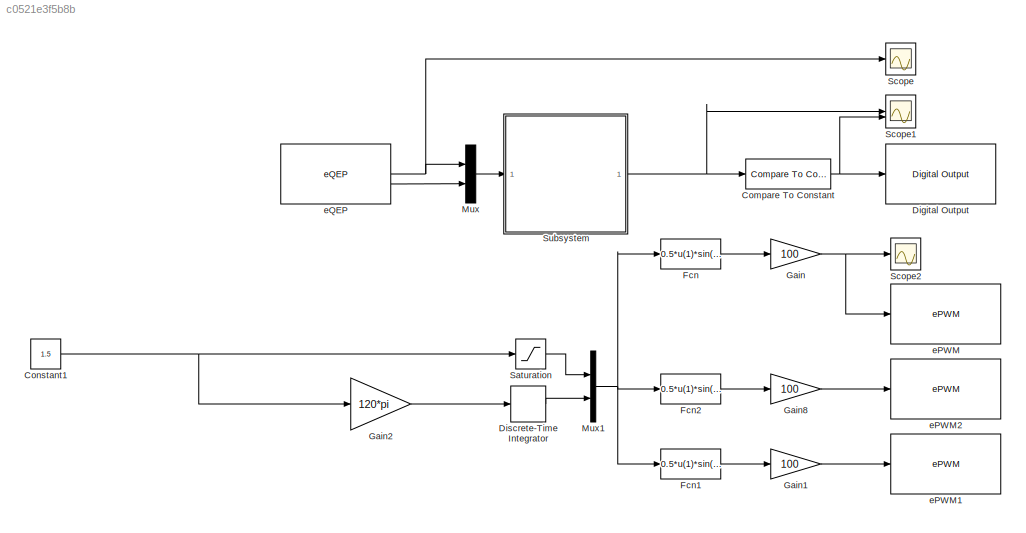
MODEL slx_c0521e3f5b8b
KIND model
CONFIG AbsTol = auto
CONFIG EnableMultiTasking = on
CONFIG FixedStep = auto
CONFIG MaxStep = auto
CONFIG MinStep = auto
CONFIG RelTol = 1e-3
CONFIG SampleTimeConstraint = Unconstrained
CONFIG SolverName = FixedStepAuto
CONFIG StartTime = 0.0
CONFIG StopTime = Inf
BLOCK [Reference] Compare To Constant  REF=simulink/Logic and Bit
Operations/Compare
To Constant
  SourceBlock = simulink/Logic and Bit\nOperations/Compare\nTo Constant
  SourceType = Compare To Constant
BLOCK [Constant] Constant1
  Value = 1.5
BLOCK [Reference] Digital Output  REF=c2837xDlib/Digital Output
  SourceBlock = c2837xDlib/Digital Output
  SourceType = F2837x GPIO Digital Output
  UserDataPersistent = on
BLOCK [DiscreteIntegrator] Discrete-Time Integrator
  ICPrevOutput = DiscIntNeverNeededParam
  ICPrevScaledInput = DiscIntNeverNeededParam
  InitialConditionSetting = Auto
  SampleTime = -1
BLOCK [Fcn] Fcn
  Expr = 0.5*u(1)*sin(u(2))+0.5
BLOCK [Fcn] Fcn1
  Expr = 0.5*u(1)*sin(u(2)+(2*pi/3))+0.5
BLOCK [Fcn] Fcn2
  Expr = 0.5*u(1)*sin(u(2)-(2*pi/3))+0.5
BLOCK [Gain] Gain
  Gain = 100
BLOCK [Gain] Gain1
  Gain = 100
BLOCK [Gain] Gain2
  Gain = 120*pi
BLOCK [Gain] Gain8
  Gain = 100
BLOCK [Mux] Mux
  DisplayOption = bar
  Inputs = 2
BLOCK [Mux] Mux1
  DisplayOption = bar
  Inputs = 2
BLOCK [Saturate] Saturation
  LowerLimit = 0
  UpperLimit = 0.9
BLOCK [Scope] Scope
  Floating = off
  NumInputPorts = 1
  ScopeSpecificationString = Simulink.scopes.TimeScopeBlockCfg('CurrentConfiguration', extmgr.ConfigurationSet(extmgr.Configuration('Core','General UI',true),extmgr.Configuration('Core','Source UI',true),extmgr.Configuration('Sources','WiredSimulink',true),extmgr.Configuration('Visuals','Time Domain',true,'SerializedDisplays',{struct('MinYLimReal','0.9','MaxYLimReal','1.1','YLabelReal','','MinYLimMag','0.9','MaxYLimMag','1.1'...<+1435ch>
BLOCK [Scope] Scope1
  Floating = off
  NumInputPorts = 2
  ScopeSpecificationString = Simulink.scopes.TimeScopeBlockCfg('CurrentConfiguration', extmgr.ConfigurationSet(extmgr.Configuration('Core','General UI',true),extmgr.Configuration('Core','Source UI',true),extmgr.Configuration('Sources','WiredSimulink',true,'DataLoggingVariableName','ScopeData1'),extmgr.Configuration('Visuals','Time Domain',true,'SerializedDisplays',{struct('MinYLimReal','0.00214','MaxYLimReal','0.00414','YLabe...<+2280ch>
BLOCK [Scope] Scope2
  Floating = off
  NumInputPorts = 1
  ScopeSpecificationString = Simulink.scopes.TimeScopeBlockCfg('CurrentConfiguration', extmgr.ConfigurationSet(extmgr.Configuration('Core','General UI',true),extmgr.Configuration('Core','Source UI',true),extmgr.Configuration('Sources','WiredSimulink',true,'DataLoggingVariableName','ScopeData2'),extmgr.Configuration('Visuals','Time Domain',true,'SerializedDisplays',{struct('MinYLimReal','-6.25','MaxYLimReal','106.25','YLabelRe...<+1542ch>
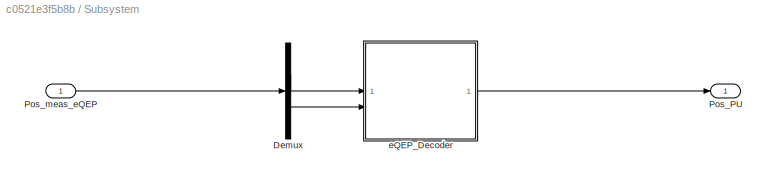
BLOCK [SubSystem] Subsystem
BLOCK [Demux] Subsystem/Demux
  Outputs = 2
BLOCK [Outport] Subsystem/Pos_PU
  InitialOutput = 0
  VectorParamsAs1DForOutWhenUnconnected = off
BLOCK [Inport] Subsystem/Pos_meas_eQEP
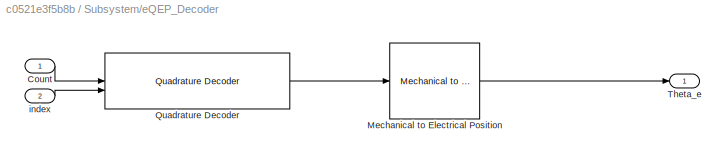
BLOCK [SubSystem] Subsystem/eQEP_Decoder
BLOCK [Inport] Subsystem/eQEP_Decoder/Count
BLOCK [Reference] Subsystem/eQEP_Decoder/Mechanical to Electrical Position  REF=mcbpositiondecoderlib/Mechanical to Electrical Position
  SourceBlock = mcbpositiondecoderlib/Mechanical to Electrical Position
  SourceType = Mechanical to Electrical Position
BLOCK [Reference] Subsystem/eQEP_Decoder/Quadrature Decoder  REF=mcbpositiondecoderlib/Quadrature Decoder
  SourceBlock = mcbpositiondecoderlib/Quadrature Decoder
  SourceType = Quadrature Decoder
BLOCK [Outport] Subsystem/eQEP_Decoder/Theta_e
  VectorParamsAs1DForOutWhenUnconnected = off
BLOCK [Inport] Subsystem/eQEP_Decoder/index
  Port = 2
BLOCK [Reference] ePWM  REF=c2802xlib/ePWM
  SourceBlock = c2802xlib/ePWM
  SourceType = ePWM Type 1-4
  UserDataPersistent = on
BLOCK [Reference] ePWM1  REF=c2802xlib/ePWM
  SourceBlock = c2802xlib/ePWM
  SourceType = ePWM Type 1-4
  UserDataPersistent = on
BLOCK [Reference] ePWM2  REF=c2802xlib/ePWM
  SourceBlock = c2802xlib/ePWM
  SourceType = ePWM Type 1-4
  UserDataPersistent = on
BLOCK [Reference] eQEP  REF=c280xlib/eQEP
  SourceBlock = c280xlib/eQEP
  SourceType = C28x eQEP
NET Compare To Constant:1 -> Digital Output:1, Scope1:2
NET Constant1:1 -> Gain2:1, Saturation:1
LINE Discrete-Time Integrator:1 -> Mux1:2
LINE Fcn1:1 -> Gain1:1
LINE Fcn2:1 -> Gain8:1
LINE Fcn:1 -> Gain:1
LINE Gain1:1 -> ePWM1:1
LINE Gain2:1 -> Discrete-Time Integrator:1
LINE Gain8:1 -> ePWM2:1
NET Gain:1 -> Scope2:1, ePWM:1
NET Mux1:1 -> Fcn1:1, Fcn2:1, Fcn:1
LINE Mux:1 -> Subsystem:1
LINE Saturation:1 -> Mux1:1
LINE Subsystem/Demux:1 -> Subsystem/eQEP_Decoder:1
LINE Subsystem/Demux:2 -> Subsystem/eQEP_Decoder:2
LINE Subsystem/Pos_meas_eQEP:1 -> Subsystem/Demux:1
LINE Subsystem/eQEP_Decoder/Count:1 -> Subsystem/eQEP_Decoder/Quadrature Decoder:1
LINE Subsystem/eQEP_Decoder/Mechanical to Electrical Position:1 -> Subsystem/eQEP_Decoder/Theta_e:1
LINE Subsystem/eQEP_Decoder/Quadrature Decoder:1 -> Subsystem/eQEP_Decoder/Mechanical to Electrical Position:1
LINE Subsystem/eQEP_Decoder/index:1 -> Subsystem/eQEP_Decoder/Quadrature Decoder:2
LINE Subsystem/eQEP_Decoder:1 -> Subsystem/Pos_PU:1
NET Subsystem:1 -> Compare To Constant:1, Scope1:1
NET eQEP:1 -> Mux:1, Scope:1
LINE eQEP:2 -> Mux:2
note: NET lines group one-source signal fan-out (src -> all destinations, sorted); 1:1 wires keep LINE
